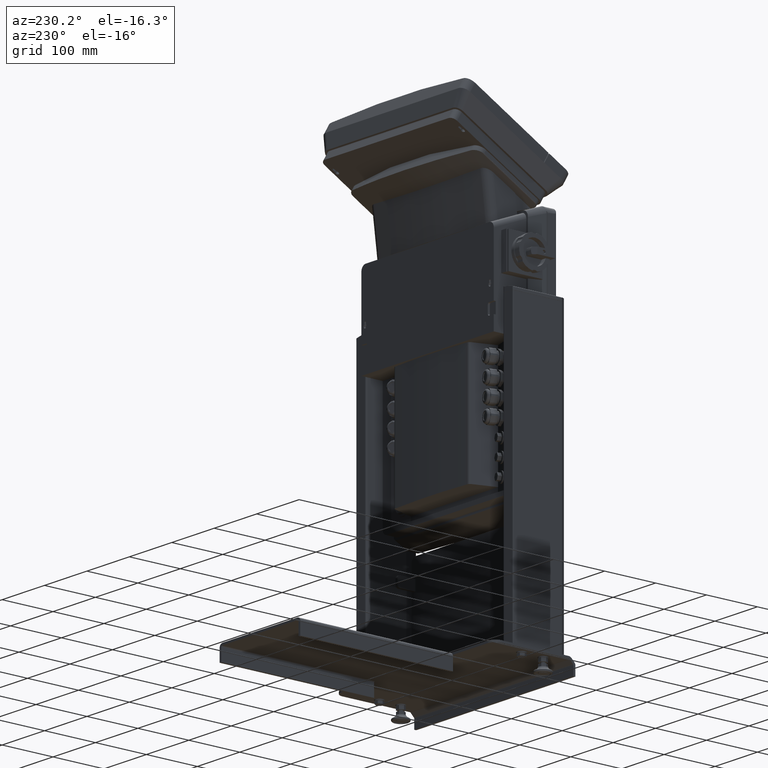
[diagram: clean part render]
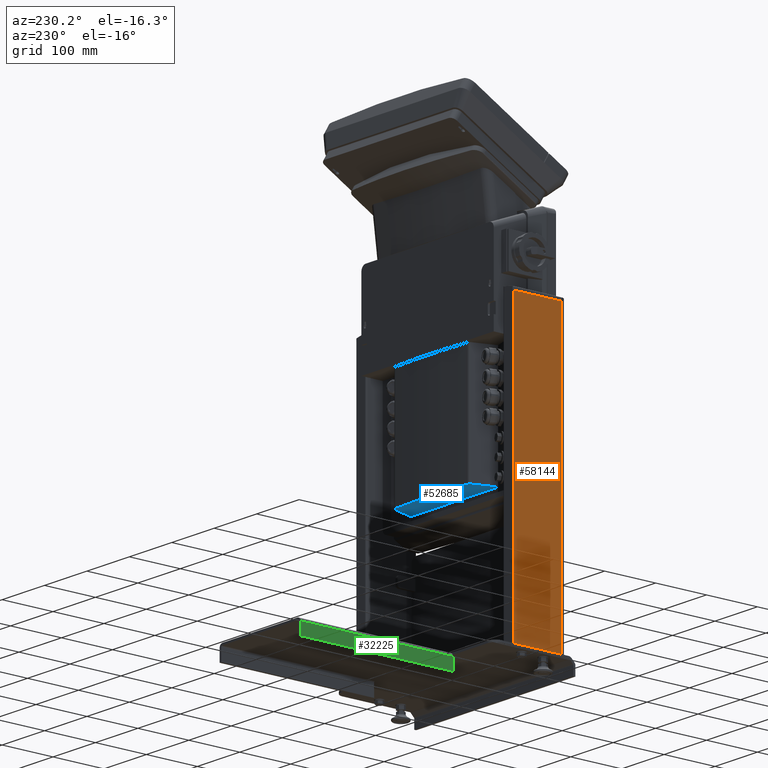
[diagram: same view with three faces highlighted in distinct colors, each labeled with its STEP entity id]
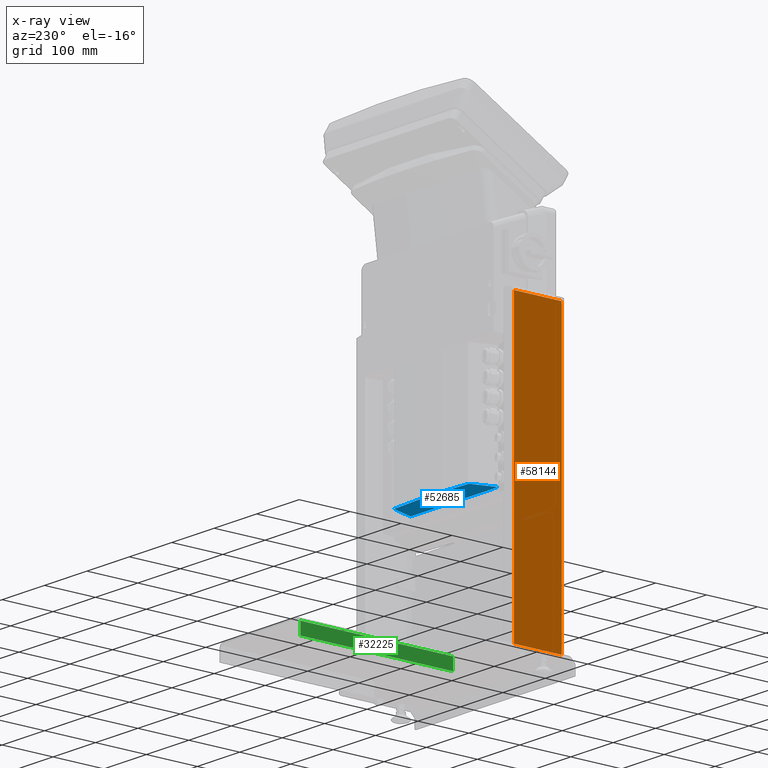
[diagram: x-ray of the same camera — body ghosted, the three highlighted faces saturated]
A machine part, auxiliary view with three faces highlighted in distinct colors.
The next image is the same camera in x-ray (body ghosted, the three faces saturated) — at least one of them is partly hidden behind the body in this view.
Their STEP definitions:

[orange] entity #58144 — the highlighted face is a freeform B-spline surface patch.
#57767=CARTESIAN_POINT('',(-190.00680636999965,-340.48034141333437,555.00000048299978));
#57768=VERTEX_POINT('',#57767);
#57776=CARTESIAN_POINT('',(-190.00680636999965,-340.48034141333437,-0.999999583219164));
#57777=VERTEX_POINT('',#57776);
#57778=CARTESIAN_POINT('',(-190.00680636999965,-340.48034141333437,555.00000048299978));
#57779=DIRECTION('',(0.0,0.0,-1.0));
#57780=VECTOR('',#57779,556.00000006621894);
#57781=LINE('',#57778,#57780);
#57782=EDGE_CURVE('',#57768,#57777,#57781,.T.);
#58033=CARTESIAN_POINT('',(-190.00680636999988,-246.50034141333433,555.00000048299978));
#58034=VERTEX_POINT('',#58033);
#58035=CARTESIAN_POINT('',(-190.00680636999988,-246.50034141333433,-0.999999583219164));
#58036=VERTEX_POINT('',#58035);
#58037=CARTESIAN_POINT('',(-190.00680636999988,-246.50034141333433,555.00000048299978));
#58038=DIRECTION('',(0.0,0.0,-1.0));
#58039=VECTOR('',#58038,556.00000006621894);
#58040=LINE('',#58037,#58039);
#58041=EDGE_CURVE('',#58034,#58036,#58040,.T.);
#58090=CARTESIAN_POINT('',(-190.00680636999965,-246.50034141333433,-0.999999583219164));
#58091=DIRECTION('',(0.0,-1.0,0.0));
#58092=VECTOR('',#58091,93.980000000000047);
#58093=LINE('',#58090,#58092);
#58094=EDGE_CURVE('',#58036,#57777,#58093,.T.);
#58114=CARTESIAN_POINT('',(-190.00680636999996,-246.50034141333433,555.00000048299978));
#58115=DIRECTION('',(0.0,-1.0,0.0));
#58116=VECTOR('',#58115,93.980000000000047);
#58117=LINE('',#58114,#58116);
#58118=EDGE_CURVE('',#58034,#57768,#58117,.T.);
#58133=CARTESIAN_POINT('',(-190.00680636999965,-340.48034141333437,555.00000048299978));
#58134=CARTESIAN_POINT('',(-190.00680636999965,-340.48034141333437,-0.999999583219164));
#58135=CARTESIAN_POINT('',(-190.00680636999965,-246.50034141333433,555.00000048299978));
#58136=CARTESIAN_POINT('',(-190.00680636999965,-246.50034141333435,-0.999999583219164));
#58137=B_SPLINE_SURFACE_WITH_KNOTS('',1,1,((#58133,#58135),(#58134,#58136)),.UNSPECIFIED.,.F.,.F.,.U.,(2,2),(2,2),(0.0,556.00000006621894),(0.0,93.980000000000047),.UNSPECIFIED.);
#58138=ORIENTED_EDGE('',*,*,#58094,.T.);
#58139=ORIENTED_EDGE('',*,*,#57782,.F.);
#58140=ORIENTED_EDGE('',*,*,#58118,.F.);
#58141=ORIENTED_EDGE('',*,*,#58041,.T.);
#58142=EDGE_LOOP('',(#58138,#58139,#58140,#58141));
#58143=FACE_OUTER_BOUND('',#58142,.T.);
#58144=ADVANCED_FACE('',(#58143),#58137,.F.);

[blue] entity #52685 — the highlighted planar face has unit normal (0, 0, -1).
#52335=CARTESIAN_POINT('',(103.13639246516203,-288.1780208521061,272.55169542980536));
#52336=VERTEX_POINT('',#52335);
#52367=CARTESIAN_POINT('',(102.75985394199114,-288.3003656346749,272.55169542980536));
#52368=VERTEX_POINT('',#52367);
#52375=CARTESIAN_POINT('',(103.13639246516209,-288.17802085210633,272.55169542980536));
#52376=DIRECTION('',(-0.951056516295149,-0.309016994374961,0.0));
#52377=VECTOR('',#52376,0.395916033084692);
#52378=LINE('',#52375,#52377);
#52379=EDGE_CURVE('',#52336,#52368,#52378,.T.);
#52417=CARTESIAN_POINT('',(-102.7621816550257,-288.3003656346749,272.55169542980536));
#52418=VERTEX_POINT('',#52417);
#52419=CARTESIAN_POINT('',(-103.13872017819637,-288.17802085210553,272.55169542980536));
#52420=VERTEX_POINT('',#52419);
#52421=CARTESIAN_POINT('',(-102.7621816550257,-288.3003656346749,272.55169542980536));
#52422=DIRECTION('',(-0.951056516295142,0.309016994374982,0.0));
#52423=VECTOR('',#52422,0.395916033084664);
#52424=LINE('',#52421,#52423);
#52425=EDGE_CURVE('',#52418,#52420,#52424,.T.);
#52509=CARTESIAN_POINT('',(-102.7621816550257,-288.3003656346749,272.55169542980548));
#52510=DIRECTION('',(1.0,0.0,0.0));
#52511=VECTOR('',#52510,205.52203559701684);
#52512=LINE('',#52509,#52511);
#52513=EDGE_CURVE('',#52418,#52368,#52512,.T.);
#52534=CARTESIAN_POINT('',(-85.501163856517508,-242.79816991985658,272.55169542980536));
#52535=VERTEX_POINT('',#52534);
#52542=CARTESIAN_POINT('',(-89.401163856517371,-245.8981699198566,272.55169542980536));
#52543=VERTEX_POINT('',#52542);
#52544=CARTESIAN_POINT('',(-85.119200740553822,-247.28192996897198,272.55169542980536));
#52545=DIRECTION('',(7.887331E-017,-2.548872E-017,-1.0));
#52546=DIRECTION('',(-0.951547359103007,0.307502233136756,-8.288953E-017));
#52547=AXIS2_PLACEMENT_3D('',#52544,#52545,#52546);
#52548=CIRCLE('',#52547,4.499999999999999);
#52549=EDGE_CURVE('',#52543,#52535,#52548,.T.);
#52572=CARTESIAN_POINT('',(-103.13872017819637,-288.17802085210553,272.55169542980536));
#52573=DIRECTION('',(0.309016994374948,0.951056516295153,0.0));
#52574=VECTOR('',#52573,44.455666101684876);
#52575=LINE('',#52572,#52574);
#52576=EDGE_CURVE('',#52420,#52543,#52575,.T.);
#52596=CARTESIAN_POINT('',(89.398836143482583,-245.8981699198566,272.55169542980536));
#52597=VERTEX_POINT('',#52596);
#52598=CARTESIAN_POINT('',(89.398836143482583,-245.8981699198566,272.55169542980536));
#52599=DIRECTION('',(0.309016994374952,-0.951056516295152,0.0));
#52600=VECTOR('',#52599,44.455666101685573);
#52601=LINE('',#52598,#52600);
#52602=EDGE_CURVE('',#52597,#52336,#52601,.T.);
#52628=CARTESIAN_POINT('',(85.49883614348272,-242.79816991985658,272.55169542980536));
#52629=VERTEX_POINT('',#52628);
#52630=CARTESIAN_POINT('',(85.116873027519148,-247.28192996897198,272.55169542980536));
#52631=DIRECTION('',(5.948683E-018,6.982995E-017,-1.0));
#52632=DIRECTION('',(0.084880692436341,0.996391122025647,7.008287E-017));
#52633=AXIS2_PLACEMENT_3D('',#52630,#52631,#52632);
#52634=CIRCLE('',#52633,4.5);
#52635=EDGE_CURVE('',#52629,#52597,#52634,.T.);
#52659=CARTESIAN_POINT('',(-0.001163856517621,-1349.5003656346748,272.55169542980536));
#52660=DIRECTION('',(-4.068137E-018,5.265750E-017,-1.0));
#52661=DIRECTION('',(-0.077027027027027,0.997029005148485,5.281441E-017));
#52662=AXIS2_PLACEMENT_3D('',#52659,#52660,#52661);
#52663=CIRCLE('',#52662,1110.0);
#52664=EDGE_CURVE('',#52535,#52629,#52663,.T.);
#52670=CARTESIAN_POINT('',(-0.001163856517167,-268.91471874079252,272.55169542980548));
#52671=DIRECTION('',(0.0,0.0,-1.0));
#52672=DIRECTION('',(0.0,-1.0,0.0));
#52673=AXIS2_PLACEMENT_3D('',#52670,#52671,#52672);
#52674=PLANE('',#52673);
#52675=ORIENTED_EDGE('',*,*,#52664,.T.);
#52676=ORIENTED_EDGE('',*,*,#52635,.T.);
#52677=ORIENTED_EDGE('',*,*,#52602,.T.);
#52678=ORIENTED_EDGE('',*,*,#52379,.T.);
#52679=ORIENTED_EDGE('',*,*,#52513,.F.);
#52680=ORIENTED_EDGE('',*,*,#52425,.T.);
#52681=ORIENTED_EDGE('',*,*,#52576,.T.);
#52682=ORIENTED_EDGE('',*,*,#52549,.T.);
#52683=EDGE_LOOP('',(#52675,#52676,#52677,#52678,#52679,#52680,#52681,#52682));
#52684=FACE_OUTER_BOUND('',#52683,.T.);
#52685=ADVANCED_FACE('',(#52684),#52674,.T.);

[green] entity #32225 — the highlighted planar face has unit normal (-1, 0, -0).
#32150=CARTESIAN_POINT('',(-96.061778850969006,-205.50034234100005,-7.500000000010004));
#32151=VERTEX_POINT('',#32150);
#32174=CARTESIAN_POINT('',(-96.061778850969006,94.499657658999809,-7.500000000010004));
#32175=VERTEX_POINT('',#32174);
#32183=CARTESIAN_POINT('',(-96.061778850969006,94.499657658999809,-7.500000000010004));
#32184=DIRECTION('',(0.0,-1.0,0.0));
#32185=VECTOR('',#32184,299.99999999999972);
#32186=LINE('',#32183,#32185);
#32187=EDGE_CURVE('',#32175,#32151,#32186,.T.);
#32195=CARTESIAN_POINT('',(-96.061778850969006,197.99965765900004,-7.500000000010004));
#32196=DIRECTION('',(-1.0,0.0,-2.257145E-012));
#32197=DIRECTION('',(-2.257145E-012,0.0,1.0));
#32198=AXIS2_PLACEMENT_3D('',#32195,#32196,#32197);
#32199=PLANE('',#32198);
#32200=CARTESIAN_POINT('',(-96.061778850969006,94.499657658999809,-31.0));
#32201=VERTEX_POINT('',#32200);
#32202=CARTESIAN_POINT('',(-96.061778850915957,94.499657658999809,-31.0));
#32203=DIRECTION('',(-2.257409E-012,0.0,1.0));
#32204=VECTOR('',#32203,23.499999999989996);
#32205=LINE('',#32202,#32204);
#32206=EDGE_CURVE('',#32201,#32175,#32205,.T.);
#32207=ORIENTED_EDGE('',*,*,#32206,.F.);
#32208=CARTESIAN_POINT('',(-96.061778850969006,-205.50034234100005,-31.0));
#32209=VERTEX_POINT('',#32208);
#32210=CARTESIAN_POINT('',(-96.061778850969006,94.499657658999809,-31.0));
#32211=DIRECTION('',(0.0,-1.0,0.0));
#32212=VECTOR('',#32211,299.99999999999972);
#32213=LINE('',#32210,#32212);
#32214=EDGE_CURVE('',#32201,#32209,#32213,.T.);
#32215=ORIENTED_EDGE('',*,*,#32214,.T.);
#32216=CARTESIAN_POINT('',(-96.061778850995381,-205.50034234100005,-7.500000000010004));
#32217=DIRECTION('',(2.244710E-012,0.0,-1.0));
#32218=VECTOR('',#32217,23.499999999989996);
#32219=LINE('',#32216,#32218);
#32220=EDGE_CURVE('',#32151,#32209,#32219,.T.);
#32221=ORIENTED_EDGE('',*,*,#32220,.F.);
#32222=ORIENTED_EDGE('',*,*,#32187,.F.);
#32223=EDGE_LOOP('',(#32207,#32215,#32221,#32222));
#32224=FACE_OUTER_BOUND('',#32223,.T.);
#32225=ADVANCED_FACE('',(#32224),#32199,.T.);